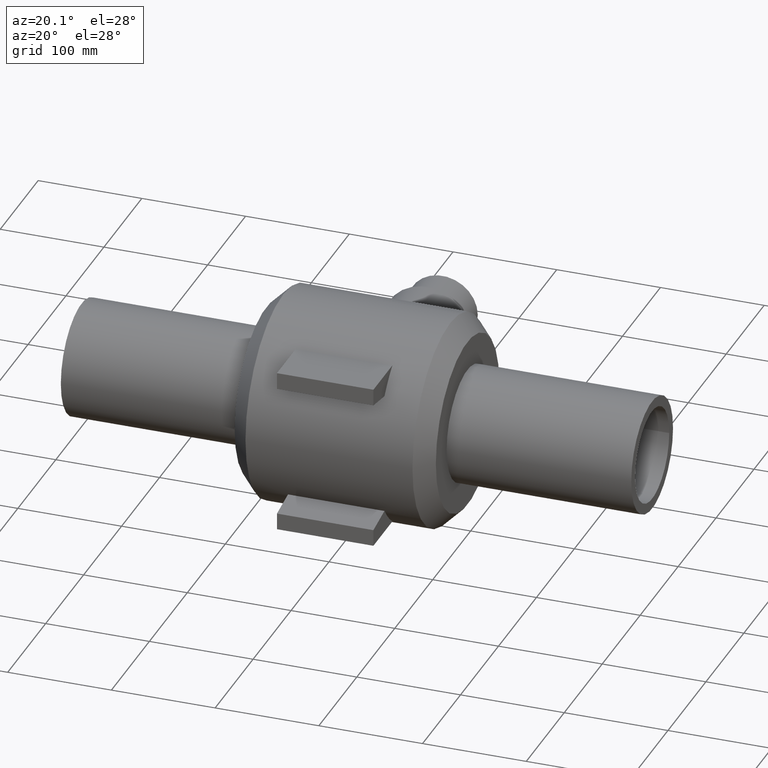
[diagram: clean part render]
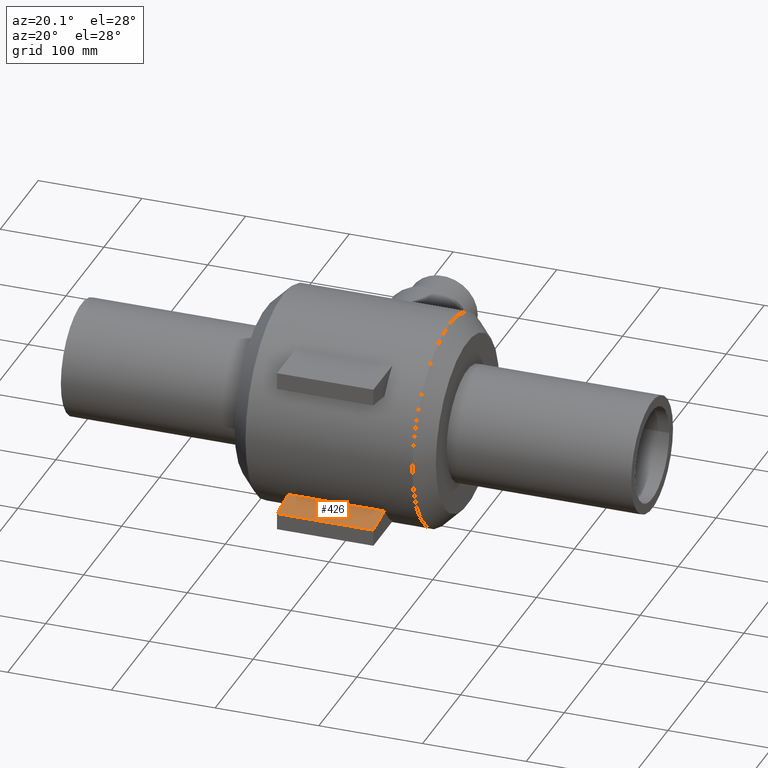
[diagram: same view with one face highlighted and labeled with its STEP entity id]
A machine part, auxiliary view. The second image highlights one B-rep face of the part: STEP entity #426.
In plain terms, the highlighted planar face has unit normal (0, 0.1736, -0.9848).
Its self-contained STEP definition (entity closure, byte-faithful):
#21=PLANE('',#476);
#40=LINE('',#843,#60);
#44=LINE('',#877,#64);
#45=LINE('',#880,#65);
#46=LINE('',#881,#66);
#60=VECTOR('',#528,93.);
#64=VECTOR('',#570,29.6065322183256);
#65=VECTOR('',#573,93.);
#66=VECTOR('',#574,29.6065322183256);
#125=FACE_OUTER_BOUND('',#170,.T.);
#170=EDGE_LOOP('',(#354,#355,#356,#357));
#239=VERTEX_POINT('',#840);
#240=VERTEX_POINT('',#842);
#251=VERTEX_POINT('',#875);
#252=VERTEX_POINT('',#879);
#279=EDGE_CURVE('',#239,#240,#40,.T.);
#292=EDGE_CURVE('',#239,#251,#44,.T.);
#293=EDGE_CURVE('',#251,#252,#45,.T.);
#294=EDGE_CURVE('',#252,#240,#46,.T.);
#354=ORIENTED_EDGE('',*,*,#279,.F.);
#355=ORIENTED_EDGE('',*,*,#292,.T.);
#356=ORIENTED_EDGE('',*,*,#293,.T.);
#357=ORIENTED_EDGE('',*,*,#294,.T.);
#426=ADVANCED_FACE('',(#125),#21,.F.);
#476=AXIS2_PLACEMENT_3D('',#878,#571,#572);
#528=DIRECTION('',(1.,0.,0.));
#570=DIRECTION('',(0.,-0.984807753012208,-0.17364817766693));
#571=DIRECTION('center_axis',(0.,0.17364817766693,-0.984807753012208));
#572=DIRECTION('ref_axis',(0.,0.984807753012208,0.173648177666929));
#573=DIRECTION('',(1.,0.,0.));
#574=DIRECTION('',(0.,0.984807753012208,0.17364817766693));
#840=CARTESIAN_POINT('',(-46.5,-80.8432575315872,-58.8588796332505));
#842=CARTESIAN_POINT('',(46.5,-80.8432575315872,-58.8588796332505));
#843=CARTESIAN_POINT('',(0.,-80.8432575315872,-58.8588796332505));
#875=CARTESIAN_POINT('',(-46.5,-110.,-64.));
#877=CARTESIAN_POINT('',(-46.5,-110.,-64.));
#878=CARTESIAN_POINT('Origin',(0.,-110.,-64.));
#879=CARTESIAN_POINT('',(46.5,-110.,-64.));
#880=CARTESIAN_POINT('',(0.,-110.,-64.));
#881=CARTESIAN_POINT('',(46.5,-110.,-64.));